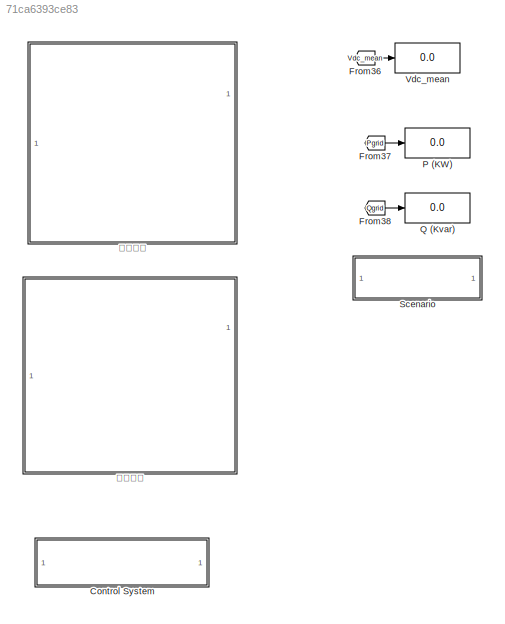
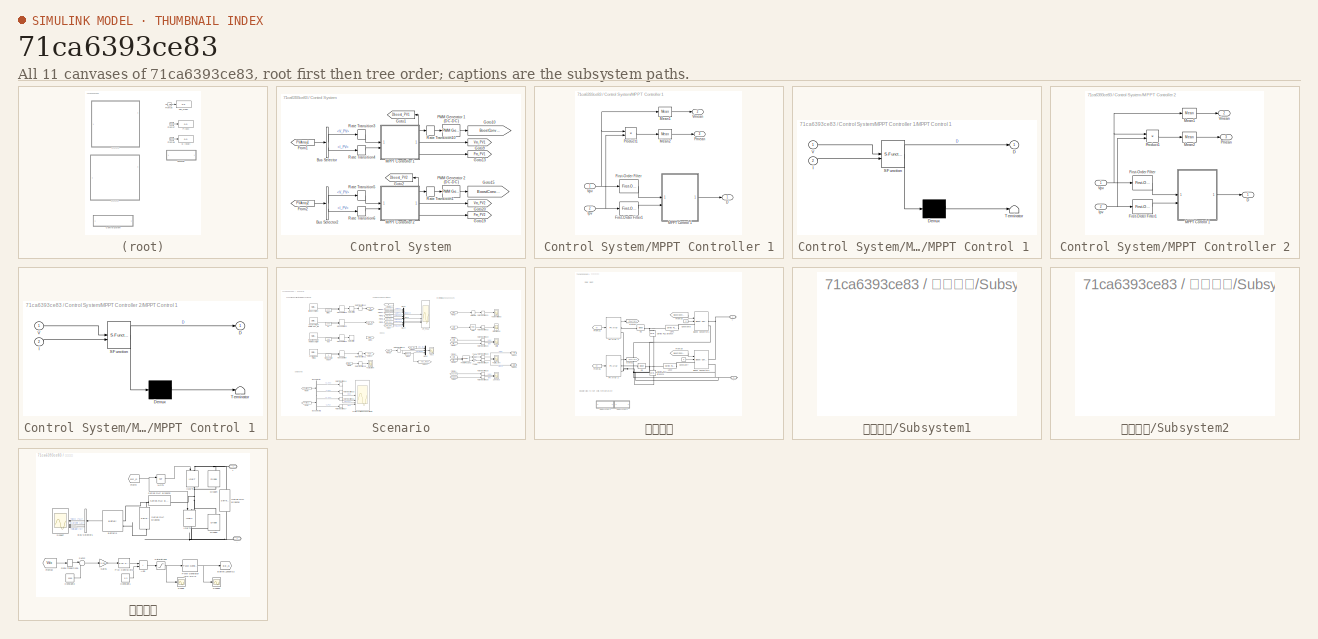
[diagram: thumbnail index - all 11 canvases of the model, root first then tree order]
MODEL slx_71ca6393ce83
KIND model
CONFIG AbsTol = auto
CONFIG EnableMultiTasking = off
CONFIG FixedStep = auto
CONFIG MaxStep = auto
CONFIG MinStep = auto
CONFIG RelTol = 1e-3
CONFIG SampleTimeConstraint = Unconstrained
CONFIG SolverName = VariableStepAuto
CONFIG StartTime = 0.0
CONFIG StopTime = 10.0
BLOCK [SubSystem] Control System
BLOCK [BusSelector] Control System/Bus Selector
  OutputSignals = V_PV,I_PV
BLOCK [BusSelector] Control System/Bus Selector2
  OutputSignals = V_PV,I_PV
BLOCK [From] Control System/From1
  GotoTag = PVArray1
  TagVisibility = global
BLOCK [From] Control System/From2
  GotoTag = PVArray2
  TagVisibility = global
BLOCK [Goto] Control System/Goto1
  GotoTag = Dboost_PV1
  TagVisibility = global
BLOCK [Goto] Control System/Goto10
  GotoTag = BoostConverter1
  TagVisibility = global
BLOCK [Goto] Control System/Goto13
  GotoTag = Pm_PV1
  TagVisibility = global
BLOCK [Goto] Control System/Goto15
  GotoTag = BoostConverter2
  TagVisibility = global
BLOCK [Goto] Control System/Goto19
  GotoTag = Pm_PV2
  TagVisibility = global
BLOCK [Goto] Control System/Goto2
  GotoTag = Dboost_PV2
  TagVisibility = global
BLOCK [Goto] Control System/Goto20
  GotoTag = Vm_PV2
  TagVisibility = global
BLOCK [Goto] Control System/Goto9
  GotoTag = Vm_PV1
  TagVisibility = global
BLOCK [SubSystem] Control System/MPPT Controller 1
BLOCK [Outport] Control System/MPPT Controller 1/D
  VectorParamsAs1DForOutWhenUnconnected = off
BLOCK [Reference] Control System/MPPT Controller 1/First-Order Filter  REF=spsFirstOrderFilterLib/First-Order
Filter
  LibrarySourceBlock = sps_lib/Control/Filters/First-Order\nFilter
  SourceBlock = spsFirstOrderFilterLib/First-Order\nFilter
  SourceType = First-Order Filter
BLOCK [Reference] Control System/MPPT Controller 1/First-Order Filter1  REF=spsFirstOrderFilterLib/First-Order
Filter
  LibrarySourceBlock = sps_lib/Control/Filters/First-Order\nFilter
  SourceBlock = spsFirstOrderFilterLib/First-Order\nFilter
  SourceType = First-Order Filter
BLOCK [Inport] Control System/MPPT Controller 1/Ipv
  Port = 2
BLOCK [SubSystem] Control System/MPPT Controller 1/MPPT Control 1 
  ErrorFcn = Stateflow.Translate.translate
  NameLocation = top
  PermitHierarchicalResolution = ExplicitOnly
  SFBlockType = MATLAB Function
  TreatAsAtomicUnit = on
BLOCK [Demux] Control System/MPPT Controller 1/MPPT Control 1 / Demux 
  Outputs = 1
BLOCK [S-Function] Control System/MPPT Controller 1/MPPT Control 1 / SFunction 
  EnableBusSupport = on
  FunctionName = sf_sfun
  Parameters = Dinit,Dmax,Dmin,deltaD
  PortCounts = [2 2]
  SFcnIsStateOwnerBlock = off
  SFunctionDeploymentMode = off
  Tag = Stateflow S-Function 1
BLOCK [Terminator] Control System/MPPT Controller 1/MPPT Control 1 / Terminator 
BLOCK [Outport] Control System/MPPT Controller 1/MPPT Control 1 /D
  VectorParamsAs1DForOutWhenUnconnected = off
BLOCK [Inport] Control System/MPPT Controller 1/MPPT Control 1 /I
  Port = 2
BLOCK [Inport] Control System/MPPT Controller 1/MPPT Control 1 /V
BLOCK [Reference] Control System/MPPT Controller 1/Mean1  REF=spsMeanLib/Mean
  LibrarySourceBlock = sps_lib/Sensors and Measurements/Mean
  SourceBlock = spsMeanLib/Mean
  SourceType = Mean
BLOCK [Reference] Control System/MPPT Controller 1/Mean2  REF=spsMeanLib/Mean
  LibrarySourceBlock = sps_lib/Sensors and Measurements/Mean
  SourceBlock = spsMeanLib/Mean
  SourceType = Mean
BLOCK [Outport] Control System/MPPT Controller 1/Pmean
  Port = 3
  VectorParamsAs1DForOutWhenUnconnected = off
BLOCK [Product] Control System/MPPT Controller 1/Product1
BLOCK [Outport] Control System/MPPT Controller 1/Vmean
  Port = 2
  VectorParamsAs1DForOutWhenUnconnected = off
BLOCK [Inport] Control System/MPPT Controller 1/Vpv
BLOCK [SubSystem] Control System/MPPT Controller 2
BLOCK [Outport] Control System/MPPT Controller 2/D
  VectorParamsAs1DForOutWhenUnconnected = off
BLOCK [Reference] Control System/MPPT Controller 2/First-Order Filter  REF=spsFirstOrderFilterLib/First-Order
Filter
  LibrarySourceBlock = sps_lib/Control/Filters/First-Order\nFilter
  SourceBlock = spsFirstOrderFilterLib/First-Order\nFilter
  SourceType = First-Order Filter
BLOCK [Reference] Control System/MPPT Controller 2/First-Order Filter1  REF=spsFirstOrderFilterLib/First-Order
Filter
  LibrarySourceBlock = sps_lib/Control/Filters/First-Order\nFilter
  SourceBlock = spsFirstOrderFilterLib/First-Order\nFilter
  SourceType = First-Order Filter
BLOCK [Inport] Control System/MPPT Controller 2/Ipv
  Port = 2
BLOCK [SubSystem] Control System/MPPT Controller 2/MPPT Control 1 
  ErrorFcn = Stateflow.Translate.translate
  NameLocation = top
  PermitHierarchicalResolution = ExplicitOnly
  SFBlockType = MATLAB Function
  TreatAsAtomicUnit = on
BLOCK [Demux] Control System/MPPT Controller 2/MPPT Control 1 / Demux 
  Outputs = 1
BLOCK [S-Function] Control System/MPPT Controller 2/MPPT Control 1 / SFunction 
  EnableBusSupport = on
  FunctionName = sf_sfun
  Parameters = Dinit,Dmax,Dmin,deltaD
  PortCounts = [2 2]
  SFcnIsStateOwnerBlock = off
  SFunctionDeploymentMode = off
  Tag = Stateflow S-Function 4
BLOCK [Terminator] Control System/MPPT Controller 2/MPPT Control 1 / Terminator 
BLOCK [Outport] Control System/MPPT Controller 2/MPPT Control 1 /D
  VectorParamsAs1DForOutWhenUnconnected = off
BLOCK [Inport] Control System/MPPT Controller 2/MPPT Control 1 /I
  Port = 2
BLOCK [Inport] Control System/MPPT Controller 2/MPPT Control 1 /V
BLOCK [Reference] Control System/MPPT Controller 2/Mean1  REF=spsMeanLib/Mean
  LibrarySourceBlock = sps_lib/Sensors and Measurements/Mean
  SourceBlock = spsMeanLib/Mean
  SourceType = Mean
BLOCK [Reference] Control System/MPPT Controller 2/Mean2  REF=spsMeanLib/Mean
  LibrarySourceBlock = sps_lib/Sensors and Measurements/Mean
  SourceBlock = spsMeanLib/Mean
  SourceType = Mean
BLOCK [Outport] Control System/MPPT Controller 2/Pmean
  Port = 3
  VectorParamsAs1DForOutWhenUnconnected = off
BLOCK [Product] Control System/MPPT Controller 2/Product1
BLOCK [Outport] Control System/MPPT Controller 2/Vmean
  Port = 2
  VectorParamsAs1DForOutWhenUnconnected = off
BLOCK [Inport] Control System/MPPT Controller 2/Vpv
BLOCK [Reference] Control System/PWM Generator 1 (DC-DC)  REF=spsPWMGeneratorDCDCLib/PWM Generator
(DC-DC)
  LibrarySourceBlock = sps_lib/Power Electronics/Power Electronics Control/PWM Generator\n(DC-DC)
  NameLocation = top
  SourceBlock = spsPWMGeneratorDCDCLib/PWM Generator\n(DC-DC)
  SourceType = PWM Generator (DC-DC)
BLOCK [Reference] Control System/PWM Generator 2 (DC-DC)  REF=spsPWMGeneratorDCDCLib/PWM Generator
(DC-DC)
  LibrarySourceBlock = sps_lib/Power Electronics/Power Electronics Control/PWM Generator\n(DC-DC)
  NameLocation = top
  SourceBlock = spsPWMGeneratorDCDCLib/PWM Generator\n(DC-DC)
  SourceType = PWM Generator (DC-DC)
BLOCK [RateTransition] Control System/Rate Transition1
  OutPortSampleTime = Ts_Power
BLOCK [RateTransition] Control System/Rate Transition10
  OutPortSampleTime = Ts_Power
BLOCK [RateTransition] Control System/Rate Transition3
  OutPortSampleTime = Ts
BLOCK [RateTransition] Control System/Rate Transition4
  OutPortSampleTime = Ts
BLOCK [RateTransition] Control System/Rate Transition5
  OutPortSampleTime = Ts
BLOCK [RateTransition] Control System/Rate Transition6
  OutPortSampleTime = Ts
BLOCK [From] From36
  GotoTag = Vdc_mean
  TagVisibility = global
BLOCK [From] From37
  GotoTag = Pgrid
  TagVisibility = global
BLOCK [From] From38
  GotoTag = Qgrid
  TagVisibility = global
BLOCK [Display] P (KW)
  Decimation = 200
  Format = bank
BLOCK [Display] Q (Kvar)
  Decimation = 200
  Format = bank
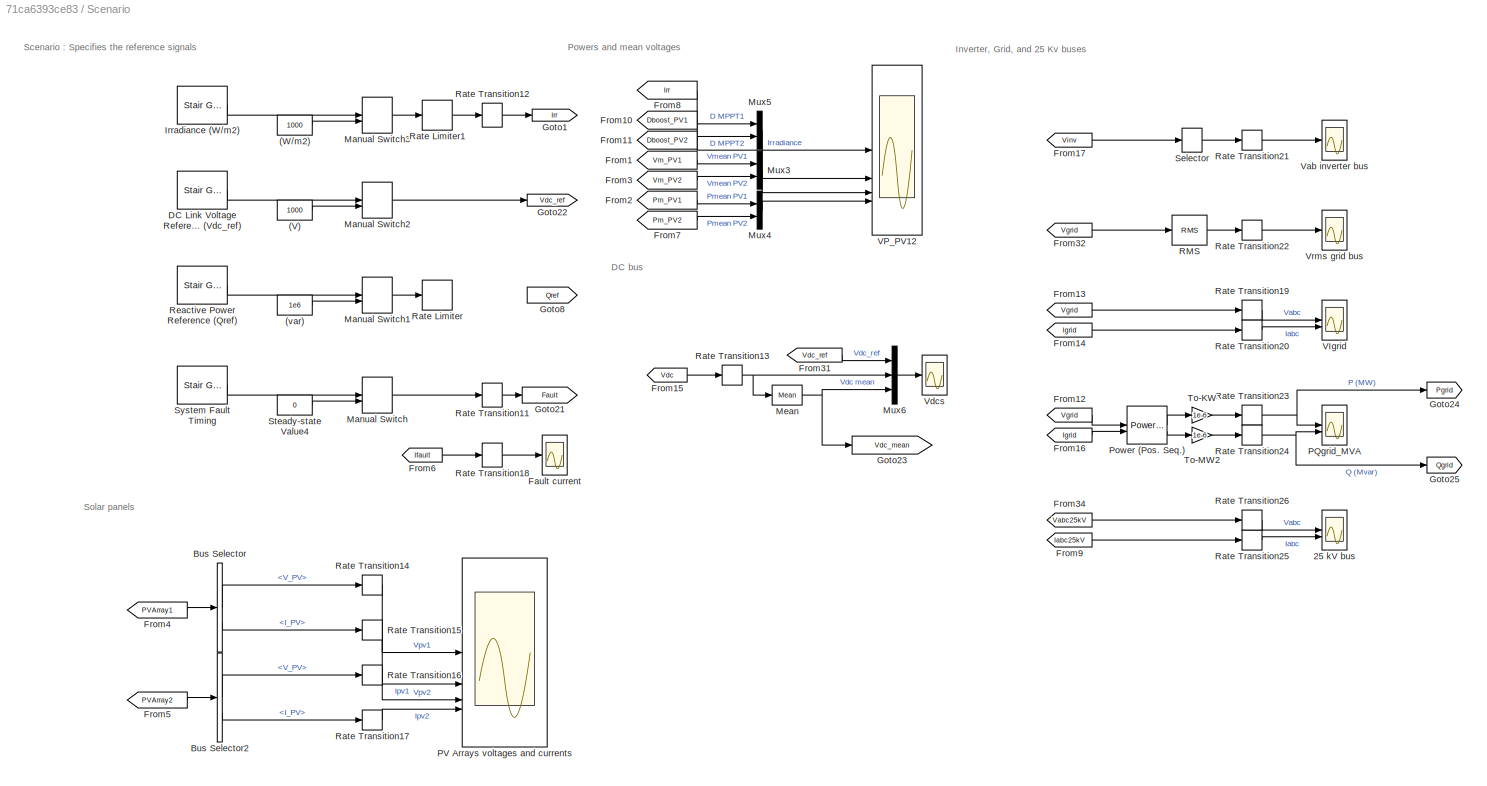
BLOCK [SubSystem] Scenario
BLOCK [Constant] Scenario/(V)
  Value = 1000
BLOCK [Constant] Scenario/(W//m2)
  Value = 1000
BLOCK [Constant] Scenario/(var)
  Value = 1e6
BLOCK [Scope] Scenario/25 kV bus
  Floating = off
  NumInputPorts = 2
  ScopeSpecificationString = Simulink.scopes.TimeScopeBlockCfg('CurrentConfiguration', extmgr.ConfigurationSet(extmgr.Configuration('Core','General UI',true),extmgr.Configuration('Core','Source UI',true),extmgr.Configuration('Sources','WiredSimulink',true,'DataLoggingVariableName','ScopeData7','DataLoggingSaveFormat','StructureWithTime','DataLoggingDecimation','100'),extmgr.Configuration('Visuals','Time Domain',true,'Serializ...<+2198ch>
BLOCK [BusSelector] Scenario/Bus Selector
  OutputSignals = V_PV,I_PV
BLOCK [BusSelector] Scenario/Bus Selector2
  OutputSignals = V_PV,I_PV
BLOCK [Reference] Scenario/DC Link Voltage Reference (Vdc_ref)  REF=spsStairGeneratorLib/Stair
Generator
  LibrarySourceBlock = sps_lib/Sources/Signal Generator Sources/Stair\nGenerator
  SourceBlock = spsStairGeneratorLib/Stair\nGenerator
  SourceType = Stair Generator
BLOCK [Scope] Scenario/Fault current
  Floating = off
  NumInputPorts = 1
  ScopeSpecificationString = Simulink.scopes.TimeScopeBlockCfg('CurrentConfiguration', extmgr.ConfigurationSet(extmgr.Configuration('Core','General UI',true),extmgr.Configuration('Core','Source UI',true),extmgr.Configuration('Sources','WiredSimulink',true,'DataLoggingVariableName','ScopeData2','DataLoggingSaveFormat','StructureWithTime','DataLoggingDecimation','100','DataLogging',true),extmgr.Configuration('Visuals','Time Dom...<+1617ch>
BLOCK [From] Scenario/From1
  GotoTag = Vm_PV1
  TagVisibility = global
BLOCK [From] Scenario/From10
  GotoTag = Dboost_PV1
  TagVisibility = global
BLOCK [From] Scenario/From11
  GotoTag = Dboost_PV2
  TagVisibility = global
BLOCK [From] Scenario/From12
  GotoTag = Vgrid
  TagVisibility = global
BLOCK [From] Scenario/From13
  GotoTag = Vgrid
  TagVisibility = global
BLOCK [From] Scenario/From14
  GotoTag = Igrid
  TagVisibility = global
BLOCK [From] Scenario/From15
  GotoTag = Vdc
  TagVisibility = global
BLOCK [From] Scenario/From16
  GotoTag = Igrid
  TagVisibility = global
BLOCK [From] Scenario/From17
  GotoTag = Vinv
  TagVisibility = global
BLOCK [From] Scenario/From2
  GotoTag = Pm_PV1
  TagVisibility = global
BLOCK [From] Scenario/From3
  GotoTag = Vm_PV2
  TagVisibility = global
BLOCK [From] Scenario/From31
  GotoTag = Vdc_ref
  TagVisibility = global
BLOCK [From] Scenario/From32
  GotoTag = Vgrid
  TagVisibility = global
BLOCK [From] Scenario/From34
  GotoTag = Vabc25kV
  TagVisibility = global
BLOCK [From] Scenario/From4
  GotoTag = PVArray1
  TagVisibility = global
BLOCK [From] Scenario/From5
  GotoTag = PVArray2
  TagVisibility = global
BLOCK [From] Scenario/From6
  GotoTag = Ifault
  TagVisibility = global
BLOCK [From] Scenario/From7
  GotoTag = Pm_PV2
  TagVisibility = global
BLOCK [From] Scenario/From8
  GotoTag = Irr
  TagVisibility = global
BLOCK [From] Scenario/From9
  GotoTag = Iabc25kV
  TagVisibility = global
BLOCK [Goto] Scenario/Goto1
  GotoTag = Irr
  TagVisibility = global
BLOCK [Goto] Scenario/Goto21
  GotoTag = Fault
  TagVisibility = global
BLOCK [Goto] Scenario/Goto22
  GotoTag = Vdc_ref
  TagVisibility = global
BLOCK [Goto] Scenario/Goto23
  GotoTag = Vdc_mean
  TagVisibility = global
BLOCK [Goto] Scenario/Goto24
  GotoTag = Pgrid
  TagVisibility = global
BLOCK [Goto] Scenario/Goto25
  GotoTag = Qgrid
  TagVisibility = global
BLOCK [Goto] Scenario/Goto8
  GotoTag = Qref
  TagVisibility = global
BLOCK [Reference] Scenario/Irradiance (W//m2)  REF=spsStairGeneratorLib/Stair
Generator
  LibrarySourceBlock = sps_lib/Sources/Signal Generator Sources/Stair\nGenerator
  SourceBlock = spsStairGeneratorLib/Stair\nGenerator
  SourceType = Stair Generator
BLOCK [ManualSwitch] Scenario/Manual Switch
BLOCK [ManualSwitch] Scenario/Manual Switch1
  CurrentSetting = 0
BLOCK [ManualSwitch] Scenario/Manual Switch2
  CurrentSetting = 0
BLOCK [ManualSwitch] Scenario/Manual Switch3
  CurrentSetting = 0
BLOCK [Reference] Scenario/Mean  REF=spsMeanLib/Mean
  LibrarySourceBlock = sps_lib/Sensors and Measurements/Mean
  SourceBlock = spsMeanLib/Mean
  SourceType = Mean
BLOCK [Mux] Scenario/Mux3
  DisplayOption = bar
  Inputs = 2
BLOCK [Mux] Scenario/Mux4
  DisplayOption = bar
  Inputs = 2
BLOCK [Mux] Scenario/Mux5
  DisplayOption = bar
  Inputs = 2
BLOCK [Mux] Scenario/Mux6
  DisplayOption = bar
  Inputs = 3
BLOCK [Scope] Scenario/PQgrid_MVA
  Floating = off
  NumInputPorts = 2
  ScopeSpecificationString = Simulink.scopes.TimeScopeBlockCfg('CurrentConfiguration', extmgr.ConfigurationSet(extmgr.Configuration('Core','General UI',true),extmgr.Configuration('Core','Source UI',true),extmgr.Configuration('Sources','WiredSimulink',true,'DataLoggingVariableName','ScopeData4','DataLogging',true,'DataLoggingSaveFormat','StructureWithTime'),extmgr.Configuration('Visuals','Time Domain',true,'SerializedDisplays'...<+2180ch>
BLOCK [Scope] Scenario/PV Arrays voltages and currents
  Floating = off
  NumInputPorts = 4
  ScopeSpecificationString = Simulink.scopes.TimeScopeBlockCfg('CurrentConfiguration', extmgr.ConfigurationSet(extmgr.Configuration('Core','General UI',true),extmgr.Configuration('Core','Source UI',true),extmgr.Configuration('Sources','WiredSimulink',true,'DataLoggingVariableName','ScopeData6','DataLogging',true,'DataLoggingSaveFormat','StructureWithTime'),extmgr.Configuration('Visuals','Time Domain',true,'SerializedDisplays'...<+3542ch>
BLOCK [Reference] Scenario/Power (Pos. Seq.)  REF=spsPowerPositiveSequenceLib/Power
(Positive-Sequence)
  LibrarySourceBlock = sps_lib/Sensors and Measurements/Power\n(Positive-Sequence)
  SourceBlock = spsPowerPositiveSequenceLib/Power\n(Positive-Sequence)
  SourceType = Power (Positive-Sequence)
BLOCK [Reference] Scenario/RMS  REF=spsRMSLib/RMS
  LibrarySourceBlock = sps_lib/Sensors and Measurements/RMS
  SourceBlock = spsRMSLib/RMS
  SourceType = RMS
BLOCK [RateLimiter] Scenario/Rate Limiter
  FallingSlewLimit = -1e6/(1/60)
  InitialCondition = 1e6
  RisingSlewLimit = 1e6/(1/60)
  SampleTimeMode = inherited
BLOCK [RateLimiter] Scenario/Rate Limiter1
  FallingSlewLimit = -1000/(1/60)
  InitialCondition = 1000
  RisingSlewLimit = 1000/(1/60)
  SampleTimeMode = inherited
BLOCK [RateTransition] Scenario/Rate Transition11
  OutPortSampleTime = Ts_Power
BLOCK [RateTransition] Scenario/Rate Transition12
  OutPortSampleTime = Ts_Power
BLOCK [RateTransition] Scenario/Rate Transition13
  OutPortSampleTime = Ts
BLOCK [RateTransition] Scenario/Rate Transition14
  OutPortSampleTime = Ts
BLOCK [RateTransition] Scenario/Rate Transition15
  OutPortSampleTime = Ts
BLOCK [RateTransition] Scenario/Rate Transition16
  OutPortSampleTime = Ts
BLOCK [RateTransition] Scenario/Rate Transition17
  OutPortSampleTime = Ts
BLOCK [RateTransition] Scenario/Rate Transition18
  OutPortSampleTime = Ts
BLOCK [RateTransition] Scenario/Rate Transition19
  OutPortSampleTime = Ts
BLOCK [RateTransition] Scenario/Rate Transition20
  OutPortSampleTime = Ts
BLOCK [RateTransition] Scenario/Rate Transition21
  OutPortSampleTime = Ts
BLOCK [RateTransition] Scenario/Rate Transition22
  OutPortSampleTime = Ts
BLOCK [RateTransition] Scenario/Rate Transition23
  OutPortSampleTime = Ts
BLOCK [RateTransition] Scenario/Rate Transition24
  OutPortSampleTime = Ts
BLOCK [RateTransition] Scenario/Rate Transition25
  OutPortSampleTime = Ts
BLOCK [RateTransition] Scenario/Rate Transition26
  OutPortSampleTime = Ts
BLOCK [Reference] Scenario/Reactive Power Reference (Qref)   REF=spsStairGeneratorLib/Stair
Generator
  LibrarySourceBlock = sps_lib/Sources/Signal Generator Sources/Stair\nGenerator
  SourceBlock = spsStairGeneratorLib/Stair\nGenerator
  SourceType = Stair Generator
BLOCK [Selector] Scenario/Selector
  IndexOptions = Index vector (dialog)
  Indices = 1
  InputPortWidth = 3
  OutputSizes = 1
BLOCK [Constant] Scenario/Steady-state Value4
  Value = 0
BLOCK [Reference] Scenario/System Fault Timing  REF=spsStairGeneratorLib/Stair
Generator
  LibrarySourceBlock = sps_lib/Sources/Signal Generator Sources/Stair\nGenerator
  SourceBlock = spsStairGeneratorLib/Stair\nGenerator
  SourceType = Stair Generator
BLOCK [Gain] Scenario/To-KW
  Gain = 1e-6
  NameLocation = top
BLOCK [Gain] Scenario/To-MW2
  Gain = 1e-6
  NameLocation = top
BLOCK [Scope] Scenario/VIgrid
  Floating = off
  NumInputPorts = 2
  ScopeSpecificationString = Simulink.scopes.TimeScopeBlockCfg('CurrentConfiguration', extmgr.ConfigurationSet(extmgr.Configuration('Core','General UI',true),extmgr.Configuration('Core','Source UI',true),extmgr.Configuration('Sources','WiredSimulink',true,'DataLoggingVariableName','ScopeData8','DataLoggingSaveFormat','StructureWithTime','DataLoggingDecimation','100','DataLogging',true),extmgr.Configuration('Visuals','Time Dom...<+2216ch>
BLOCK [Scope] Scenario/VP_PV12
  Floating = off
  NumInputPorts = 4
  ScopeSpecificationString = Simulink.scopes.TimeScopeBlockCfg('CurrentConfiguration', extmgr.ConfigurationSet(extmgr.Configuration('Core','General UI',true),extmgr.Configuration('Core','Source UI',true),extmgr.Configuration('Sources','WiredSimulink',true,'DataLoggingVariableName','ScopeData9','DataLogging',true,'DataLoggingSaveFormat','StructureWithTime'),extmgr.Configuration('Visuals','Time Domain',true,'SerializedDisplays'...<+3665ch>
BLOCK [Scope] Scenario/Vab inverter bus
  Floating = off
  NumInputPorts = 1
  ScopeSpecificationString = Simulink.scopes.TimeScopeBlockCfg('CurrentConfiguration', extmgr.ConfigurationSet(extmgr.Configuration('Core','General UI',true),extmgr.Configuration('Core','Source UI',true),extmgr.Configuration('Sources','WiredSimulink',true,'DataLoggingVariableName','ScopeData10','DataLogging',true,'DataLoggingSaveFormat','StructureWithTime'),extmgr.Configuration('Visuals','Time Domain',true,'SerializedDisplays...<+1588ch>
BLOCK [Scope] Scenario/Vdcs
  Floating = off
  NumInputPorts = 1
  ScopeSpecificationString = Simulink.scopes.TimeScopeBlockCfg('CurrentConfiguration', extmgr.ConfigurationSet(extmgr.Configuration('Core','General UI',true),extmgr.Configuration('Core','Source UI',true),extmgr.Configuration('Sources','WiredSimulink',true,'DataLoggingVariableName','ScopeData11','DataLogging',true,'DataLoggingSaveFormat','StructureWithTime'),extmgr.Configuration('Visuals','Time Domain',true,'SerializedDisplays...<+1624ch>
BLOCK [Scope] Scenario/Vrms grid bus
  Floating = off
  NumInputPorts = 1
  ScopeSpecificationString = Simulink.scopes.TimeScopeBlockCfg('CurrentConfiguration', extmgr.ConfigurationSet(extmgr.Configuration('Core','General UI',true),extmgr.Configuration('Core','Source UI',true),extmgr.Configuration('Sources','WiredSimulink',true,'DataLogging',true,'DataLoggingSaveFormat','StructureWithTime'),extmgr.Configuration('Visuals','Time Domain',true,'SerializedDisplays',{struct('MinYLimReal','12016.34853','M...<+1553ch>
BLOCK [Display] Vdc_mean
  Decimation = 200
BLOCK [SubSystem] 光伏阵列
BLOCK [PMIOPort] 光伏阵列/+
  Side = Right
BLOCK [PMIOPort] 光伏阵列/-
  Port = 2
  Side = Right
BLOCK [Reference] 光伏阵列/Boost Converter1  REF=spsBoostConverterLib/Boost Converter
  LibrarySourceBlock = sps_lib/Power Electronics/Boost Converter
  SourceBlock = spsBoostConverterLib/Boost Converter
  SourceType = Boost Converter
BLOCK [Reference] 光伏阵列/Boost Converter2  REF=spsBoostConverterLib/Boost Converter
  LibrarySourceBlock = sps_lib/Power Electronics/Boost Converter
  SourceBlock = spsBoostConverterLib/Boost Converter
  SourceType = Boost Converter
BLOCK [Constant] 光伏阵列/Constant7
  SampleTime = Ts
  Value = 0
BLOCK [Constant] 光伏阵列/Constant8
  SampleTime = Ts
  Value = 0
BLOCK [Reference] 光伏阵列/D1  REF=spsDiodeLib/Diode
  LibrarySourceBlock = sps_lib/Power Electronics/Diode
  SourceBlock = spsDiodeLib/Diode
  SourceType = Diode
BLOCK [Reference] 光伏阵列/D2  REF=spsDiodeLib/Diode
  LibrarySourceBlock = sps_lib/Power Electronics/Diode
  SourceBlock = spsDiodeLib/Diode
  SourceType = Diode
BLOCK [From] 光伏阵列/From21
  GotoTag = Irr
  TagVisibility = global
BLOCK [From] 光伏阵列/From33
  GotoTag = BoostConverter1
  TagVisibility = global
BLOCK [From] 光伏阵列/From35
  GotoTag = Irr
  TagVisibility = global
BLOCK [From] 光伏阵列/From39
  GotoTag = BoostConverter2
  TagVisibility = global
BLOCK [Goto] 光伏阵列/Goto13
  GotoTag = PVArray2
  TagVisibility = global
BLOCK [Goto] 光伏阵列/Goto17
  GotoTag = PVArray1
  TagVisibility = global
BLOCK [Reference] 光伏阵列/Lpv1  REF=spsSeriesRLCBranchLib/Series RLC Branch
  LibrarySourceBlock = sps_lib/Passives/Series RLC Branch
  NameLocation = top
  SourceBlock = spsSeriesRLCBranchLib/Series RLC Branch
  SourceType = Series RLC Branch
BLOCK [Reference] 光伏阵列/Lpv2  REF=spsSeriesRLCBranchLib/Series RLC Branch
  LibrarySourceBlock = sps_lib/Passives/Series RLC Branch
  NameLocation = top
  SourceBlock = spsSeriesRLCBranchLib/Series RLC Branch
  SourceType = Series RLC Branch
BLOCK [Reference] 光伏阵列/PV Array 1  REF=spsPVArrayLib/PV Array
  AttributesFormatString = (%<RobustCellTemperature> deg. C)
  LibrarySourceBlock = sps_lib/Sources/PV Array
  SourceBlock = spsPVArrayLib/PV Array
  SourceType = PV array
BLOCK [Reference] 光伏阵列/PV Array 2  REF=spsPVArrayLib/PV Array
  AttributesFormatString = (%<RobustCellTemperature> deg. C)
  LibrarySourceBlock = sps_lib/Sources/PV Array
  SourceBlock = spsPVArrayLib/PV Array
  SourceType = PV array
BLOCK [Reference] 光伏阵列/Series RLC Branch  REF=spsSeriesRLCBranchLib/Series RLC Branch
  LibrarySourceBlock = sps_lib/Passives/Series RLC Branch
  SourceBlock = spsSeriesRLCBranchLib/Series RLC Branch
  SourceType = Series RLC Branch
BLOCK [Reference] 光伏阵列/Series RLC Branch1  REF=spsSeriesRLCBranchLib/Series RLC Branch
  LibrarySourceBlock = sps_lib/Passives/Series RLC Branch
  SourceBlock = spsSeriesRLCBranchLib/Series RLC Branch
  SourceType = Series RLC Branch
BLOCK [SubSystem] 光伏阵列/Subsystem1
  OpenFcn = SystemName1=gcs;\nBlockName1=[SystemName1, '/', 'PV Array 1'];\nset_param(BlockName1,'RobustCellTemperature','25');\nset_param(BlockName1,'ForegroundColor','black');\nBlockName2=[SystemName1, '/', 'PV Array 2'];\nset_param(BlockName2,'RobustCellTemperature','25');\nset_param(BlockName2,'ForegroundColor','black');
BLOCK [SubSystem] 光伏阵列/Subsystem2
  OpenFcn = SystemName1=gcs;\nBlockName1=[SystemName1, '/', 'PV Array 1'];\nset_param(BlockName1,'RobustCellTemperature','45');\nset_param(BlockName1,'ForegroundColor','red');\nBlockName2=[SystemName1, '/', 'PV Array 2'];\nset_param(BlockName2,'RobustCellTemperature','45');\nset_param(BlockName2,'ForegroundColor','red');
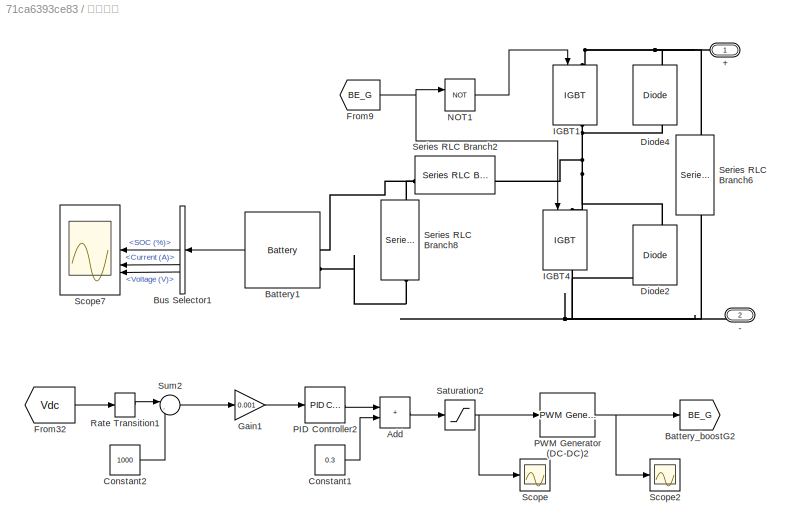
BLOCK [SubSystem] 蓄电池组
BLOCK [PMIOPort] 蓄电池组/+
  NameLocation = top
  Side = Right
BLOCK [PMIOPort] 蓄电池组/-
  NameLocation = top
  Port = 2
  Side = Right
BLOCK [Sum] 蓄电池组/Add
  IconShape = rectangular
BLOCK [Reference] 蓄电池组/Battery1  REF=spsBatteryLib/Battery
  LibrarySourceBlock = sps_lib/Sources/Battery
  SourceBlock = spsBatteryLib/Battery
  SourceType = Battery
BLOCK [Goto] 蓄电池组/Battery_boostG2
  GotoTag = BE_G
BLOCK [BusSelector] 蓄电池组/Bus Selector1
  NameLocation = top
  OutputSignals = SOC (%),Current (A),Voltage (V)
BLOCK [Constant] 蓄电池组/Constant1
  Value = 0.3
BLOCK [Constant] 蓄电池组/Constant2
  Value = 1000
BLOCK [Reference] 蓄电池组/Diode2  REF=spsDiodeLib/Diode
  LibrarySourceBlock = sps_lib/Power Electronics/Diode
  NameLocation = left
  SourceBlock = spsDiodeLib/Diode
  SourceType = Diode
BLOCK [Reference] 蓄电池组/Diode4  REF=spsDiodeLib/Diode
  LibrarySourceBlock = sps_lib/Power Electronics/Diode
  NameLocation = left
  SourceBlock = spsDiodeLib/Diode
  SourceType = Diode
BLOCK [From] 蓄电池组/From32
  GotoTag = Vdc
  NameLocation = left
  TagVisibility = global
BLOCK [From] 蓄电池组/From9
  GotoTag = BE_G
BLOCK [Gain] 蓄电池组/Gain1
  Gain = 0.001
BLOCK [Reference] 蓄电池组/IGBT1  REF=spsIGBTLib/IGBT
  LibrarySourceBlock = sps_lib/Power Electronics/IGBT
  NameLocation = left
  SourceBlock = spsIGBTLib/IGBT
  SourceType = IGBT
BLOCK [Reference] 蓄电池组/IGBT4  REF=spsIGBTLib/IGBT
  LibrarySourceBlock = sps_lib/Power Electronics/IGBT
  NameLocation = left
  SourceBlock = spsIGBTLib/IGBT
  SourceType = IGBT
BLOCK [Logic] 蓄电池组/NOT1
  AllPortsSameDT = off
  IconShape = distinctive
  Operator = NOT
  OutDataTypeStr = boolean
BLOCK [Reference] 蓄电池组/PID Controller2  REF=slpidlib/PID Controller
  LibrarySourceBlock = simulink/Continuous/PID Controller
  SourceBlock = slpidlib/PID Controller
  SourceType = PID 1dof
BLOCK [Reference] 蓄电池组/PWM Generator (DC-DC)2  REF=spsPWMGeneratorDCDCLib/PWM Generator
(DC-DC)
  LibrarySourceBlock = sps_lib/Power Electronics/Power Electronics Control/PWM Generator\n(DC-DC)
  SourceBlock = spsPWMGeneratorDCDCLib/PWM Generator\n(DC-DC)
  SourceType = PWM Generator (DC-DC)
BLOCK [RateTransition] 蓄电池组/Rate Transition1
  OutPortSampleTime = 50e-6
BLOCK [Saturate] 蓄电池组/Saturation2
  LowerLimit = 0.01
  UpperLimit = 0.9
BLOCK [Scope] 蓄电池组/Scope
  Floating = off
  NumInputPorts = 1
  ScopeSpecificationString = Simulink.scopes.TimeScopeBlockCfg('CurrentConfiguration', extmgr.ConfigurationSet(extmgr.Configuration('Core','General UI',true),extmgr.Configuration('Core','Source UI',true),extmgr.Configuration('Sources','WiredSimulink',true,'DataLoggingVariableName','ScopeData3'),extmgr.Configuration('Visuals','Time Domain',true,'SerializedDisplays',{struct('MinYLimReal','-0.02625','MaxYLimReal','0.33625','YLab...<+1396ch>
BLOCK [Scope] 蓄电池组/Scope2
  Floating = off
  NumInputPorts = 1
  ScopeSpecificationString = Simulink.scopes.TimeScopeBlockCfg('CurrentConfiguration', extmgr.ConfigurationSet(extmgr.Configuration('Core','General UI',true),extmgr.Configuration('Core','Source UI',true),extmgr.Configuration('Sources','WiredSimulink',true,'DataLoggingVariableName','ScopeData1'),extmgr.Configuration('Visuals','Time Domain',true,'SerializedDisplays',{struct('MinYLimReal','-0.11416','MaxYLimReal','1.125','YLabel...<+1444ch>
BLOCK [Scope] 蓄电池组/Scope7
  Floating = off
  NumInputPorts = 3
  ScopeSpecificationString = Simulink.scopes.TimeScopeBlockCfg('CurrentConfiguration', extmgr.ConfigurationSet(extmgr.Configuration('Core','General UI',true),extmgr.Configuration('Core','Source UI',true),extmgr.Configuration('Sources','WiredSimulink',true,'DataLoggingVariableName','ScopeData2'),extmgr.Configuration('Visuals','Time Domain',true,'SerializedDisplays',{struct('MinYLimReal','69.98612','MaxYLimReal','70.1246','YLab...<+2752ch>
BLOCK [Reference] 蓄电池组/Series RLC Branch2  REF=spsSeriesRLCBranchLib/Series RLC Branch
  LibrarySourceBlock = sps_lib/Passives/Series RLC Branch
  SourceBlock = spsSeriesRLCBranchLib/Series RLC Branch
  SourceType = Series RLC Branch
BLOCK [Reference] 蓄电池组/Series RLC Branch6  REF=spsSeriesRLCBranchLib/Series RLC Branch
  LibrarySourceBlock = sps_lib/Passives/Series RLC Branch
  NameLocation = left
  SourceBlock = spsSeriesRLCBranchLib/Series RLC Branch
  SourceType = Series RLC Branch
BLOCK [Reference] 蓄电池组/Series RLC Branch8  REF=spsSeriesRLCBranchLib/Series RLC Branch
  LibrarySourceBlock = sps_lib/Passives/Series RLC Branch
  NameLocation = left
  SourceBlock = spsSeriesRLCBranchLib/Series RLC Branch
  SourceType = Series RLC Branch
BLOCK [Sum] 蓄电池组/Sum2
  Inputs = |-+
ANNOTATION Scenario: DC bus
ANNOTATION Scenario: Inverter, Grid, and 25 Kv buses
ANNOTATION Scenario: Powers and mean voltages
ANNOTATION Scenario: Scenario : Specifies the reference signals
ANNOTATION Scenario: Solar panels
ANNOTATION 光伏阵列: Double-click to set cells temperature
ANNOTATION 光伏阵列: Solar plant
LINE Control System/Bus Selector2:1 -> Control System/Rate Transition5:1
LINE Control System/Bus Selector2:2 -> Control System/Rate Transition6:1
LINE Control System/Bus Selector:1 -> Control System/Rate Transition3:1
LINE Control System/Bus Selector:2 -> Control System/Rate Transition4:1
LINE Control System/From1:1 -> Control System/Bus Selector:1
LINE Control System/From2:1 -> Control System/Bus Selector2:1
LINE Control System/MPPT Controller 1/First-Order Filter1:1 -> Control System/MPPT Controller 1/MPPT Control 1 :2
LINE Control System/MPPT Controller 1/First-Order Filter:1 -> Control System/MPPT Controller 1/MPPT Control 1 :1
NET Control System/MPPT Controller 1/Ipv:1 -> Control System/MPPT Controller 1/First-Order Filter1:1, Control System/MPPT Controller 1/Product1:2
LINE Control System/MPPT Controller 1/MPPT Control 1 :1 -> Control System/MPPT Controller 1/D:1
LINE Control System/MPPT Controller 1/Mean1:1 -> Control System/MPPT Controller 1/Vmean:1
LINE Control System/MPPT Controller 1/Mean2:1 -> Control System/MPPT Controller 1/Pmean:1
LINE Control System/MPPT Controller 1/Product1:1 -> Control System/MPPT Controller 1/Mean2:1
NET Control System/MPPT Controller 1/Vpv:1 -> Control System/MPPT Controller 1/First-Order Filter:1, Control System/MPPT Controller 1/Mean1:1, Control System/MPPT Controller 1/Product1:1
NET Control System/MPPT Controller 1:1 -> Control System/Goto1:1, Control System/Rate Transition10:1
LINE Control System/MPPT Controller 1:2 -> Control System/Goto9:1
LINE Control System/MPPT Controller 1:3 -> Control System/Goto13:1
LINE Control System/MPPT Controller 2/First-Order Filter1:1 -> Control System/MPPT Controller 2/MPPT Control 1 :2
LINE Control System/MPPT Controller 2/First-Order Filter:1 -> Control System/MPPT Controller 2/MPPT Control 1 :1
NET Control System/MPPT Controller 2/Ipv:1 -> Control System/MPPT Controller 2/First-Order Filter1:1, Control System/MPPT Controller 2/Product1:2
LINE Control System/MPPT Controller 2/MPPT Control 1 :1 -> Control System/MPPT Controller 2/D:1
LINE Control System/MPPT Controller 2/Mean1:1 -> Control System/MPPT Controller 2/Vmean:1
LINE Control System/MPPT Controller 2/Mean2:1 -> Control System/MPPT Controller 2/Pmean:1
LINE Control System/MPPT Controller 2/Product1:1 -> Control System/MPPT Controller 2/Mean2:1
NET Control System/MPPT Controller 2/Vpv:1 -> Control System/MPPT Controller 2/First-Order Filter:1, Control System/MPPT Controller 2/Mean1:1, Control System/MPPT Controller 2/Product1:1
NET Control System/MPPT Controller 2:1 -> Control System/Goto2:1, Control System/Rate Transition1:1
LINE Control System/MPPT Controller 2:2 -> Control System/Goto20:1
LINE Control System/MPPT Controller 2:3 -> Control System/Goto19:1
LINE Control System/PWM Generator 1 (DC-DC):1 -> Control System/Goto10:1
LINE Control System/PWM Generator 2 (DC-DC):1 -> Control System/Goto15:1
LINE Control System/Rate Transition10:1 -> Control System/PWM Generator 1 (DC-DC):1
LINE Control System/Rate Transition1:1 -> Control System/PWM Generator 2 (DC-DC):1
LINE Control System/Rate Transition3:1 -> Control System/MPPT Controller 1:1
LINE Control System/Rate Transition4:1 -> Control System/MPPT Controller 1:2
LINE Control System/Rate Transition5:1 -> Control System/MPPT Controller 2:1
LINE Control System/Rate Transition6:1 -> Control System/MPPT Controller 2:2
LINE From36:1 -> Vdc_mean:1
LINE From37:1 -> P (KW):1
LINE From38:1 -> Q (Kvar):1
LINE Scenario/(V):1 -> Scenario/Manual Switch2:2
LINE Scenario/(W//m2):1 -> Scenario/Manual Switch3:2
LINE Scenario/(var):1 -> Scenario/Manual Switch1:2
LINE Scenario/Bus Selector2:1 -> Scenario/Rate Transition16:1
LINE Scenario/Bus Selector2:2 -> Scenario/Rate Transition17:1
LINE Scenario/Bus Selector:1 -> Scenario/Rate Transition14:1
LINE Scenario/Bus Selector:2 -> Scenario/Rate Transition15:1
LINE Scenario/DC Link Voltage Reference (Vdc_ref):1 -> Scenario/Manual Switch2:1
LINE Scenario/From10:1 -> Scenario/Mux5:1
LINE Scenario/From11:1 -> Scenario/Mux5:2
LINE Scenario/From12:1 -> Scenario/Power (Pos. Seq.):1
LINE Scenario/From13:1 -> Scenario/Rate Transition19:1
LINE Scenario/From14:1 -> Scenario/Rate Transition20:1
LINE Scenario/From15:1 -> Scenario/Rate Transition13:1
LINE Scenario/From16:1 -> Scenario/Power (Pos. Seq.):2
LINE Scenario/From17:1 -> Scenario/Selector:1
LINE Scenario/From1:1 -> Scenario/Mux3:1
LINE Scenario/From2:1 -> Scenario/Mux4:1
LINE Scenario/From31:1 -> Scenario/Mux6:1
LINE Scenario/From32:1 -> Scenario/RMS:1
LINE Scenario/From34:1 -> Scenario/Rate Transition26:1
LINE Scenario/From3:1 -> Scenario/Mux3:2
LINE Scenario/From4:1 -> Scenario/Bus Selector:1
LINE Scenario/From5:1 -> Scenario/Bus Selector2:1
LINE Scenario/From6:1 -> Scenario/Rate Transition18:1
LINE Scenario/From7:1 -> Scenario/Mux4:2
LINE Scenario/From8:1 -> Scenario/VP_PV12:1
LINE Scenario/From9:1 -> Scenario/Rate Transition25:1
LINE Scenario/Irradiance (W//m2):1 -> Scenario/Manual Switch3:1
LINE Scenario/Manual Switch1:1 -> Scenario/Rate Limiter:1
LINE Scenario/Manual Switch2:1 -> Scenario/Goto22:1
LINE Scenario/Manual Switch3:1 -> Scenario/Rate Limiter1:1
LINE Scenario/Manual Switch:1 -> Scenario/Rate Transition11:1
NET Scenario/Mean:1 -> Scenario/Goto23:1, Scenario/Mux6:3
LINE Scenario/Mux3:1 -> Scenario/VP_PV12:3
LINE Scenario/Mux4:1 -> Scenario/VP_PV12:4
LINE Scenario/Mux5:1 -> Scenario/VP_PV12:2
LINE Scenario/Mux6:1 -> Scenario/Vdcs:1
LINE Scenario/Power (Pos. Seq.):1 -> Scenario/To-KW:1
LINE Scenario/Power (Pos. Seq.):2 -> Scenario/To-MW2:1
LINE Scenario/RMS:1 -> Scenario/Rate Transition22:1
LINE Scenario/Rate Limiter1:1 -> Scenario/Rate Transition12:1
LINE Scenario/Rate Transition11:1 -> Scenario/Goto21:1
LINE Scenario/Rate Transition12:1 -> Scenario/Goto1:1
NET Scenario/Rate Transition13:1 -> Scenario/Mean:1, Scenario/Mux6:2
LINE Scenario/Rate Transition14:1 -> Scenario/PV Arrays voltages and currents:1
LINE Scenario/Rate Transition15:1 -> Scenario/PV Arrays voltages and currents:2
LINE Scenario/Rate Transition16:1 -> Scenario/PV Arrays voltages and currents:3
LINE Scenario/Rate Transition17:1 -> Scenario/PV Arrays voltages and currents:4
LINE Scenario/Rate Transition18:1 -> Scenario/Fault current:1
LINE Scenario/Rate Transition19:1 -> Scenario/VIgrid:1
LINE Scenario/Rate Transition20:1 -> Scenario/VIgrid:2
LINE Scenario/Rate Transition21:1 -> Scenario/Vab inverter bus:1
LINE Scenario/Rate Transition22:1 -> Scenario/Vrms grid bus:1
NET Scenario/Rate Transition23:1 -> Scenario/Goto24:1, Scenario/PQgrid_MVA:1
NET Scenario/Rate Transition24:1 -> Scenario/Goto25:1, Scenario/PQgrid_MVA:2
LINE Scenario/Rate Transition25:1 -> Scenario/25 kV bus:2
LINE Scenario/Rate Transition26:1 -> Scenario/25 kV bus:1
LINE Scenario/Reactive Power Reference (Qref) :1 -> Scenario/Manual Switch1:1
LINE Scenario/Selector:1 -> Scenario/Rate Transition21:1
LINE Scenario/Steady-state Value4:1 -> Scenario/Manual Switch:2
LINE Scenario/System Fault Timing:1 -> Scenario/Manual Switch:1
LINE Scenario/To-KW:1 -> Scenario/Rate Transition23:1
LINE Scenario/To-MW2:1 -> Scenario/Rate Transition24:1
LINE 光伏阵列/Constant7:1 -> 光伏阵列/Boost Converter2:2
LINE 光伏阵列/Constant8:1 -> 光伏阵列/Boost Converter1:2
LINE 光伏阵列/From21:1 -> 光伏阵列/PV Array 1:1
LINE 光伏阵列/From33:1 -> 光伏阵列/Boost Converter1:1
LINE 光伏阵列/From35:1 -> 光伏阵列/PV Array 2:1
LINE 光伏阵列/From39:1 -> 光伏阵列/Boost Converter2:1
LINE 光伏阵列/PV Array 1:1 -> 光伏阵列/Goto17:1
LINE 光伏阵列/PV Array 2:1 -> 光伏阵列/Goto13:1
LINE 蓄电池组/Add:1 -> 蓄电池组/Saturation2:1
LINE 蓄电池组/Battery1:1 -> 蓄电池组/Bus Selector1:1
LINE 蓄电池组/Bus Selector1:1 -> 蓄电池组/Scope7:1
LINE 蓄电池组/Bus Selector1:2 -> 蓄电池组/Scope7:2
LINE 蓄电池组/Bus Selector1:3 -> 蓄电池组/Scope7:3
LINE 蓄电池组/Constant1:1 -> 蓄电池组/Add:2
LINE 蓄电池组/Constant2:1 -> 蓄电池组/Sum2:2
LINE 蓄电池组/From32:1 -> 蓄电池组/Rate Transition1:1
NET 蓄电池组/From9:1 -> 蓄电池组/IGBT4:1, 蓄电池组/NOT1:1
LINE 蓄电池组/Gain1:1 -> 蓄电池组/PID Controller2:1
LINE 蓄电池组/NOT1:1 -> 蓄电池组/IGBT1:1
LINE 蓄电池组/PID Controller2:1 -> 蓄电池组/Add:1
NET 蓄电池组/PWM Generator (DC-DC)2:1 -> 蓄电池组/Battery_boostG2:1, 蓄电池组/Scope2:1
LINE 蓄电池组/Rate Transition1:1 -> 蓄电池组/Sum2:1
NET 蓄电池组/Saturation2:1 -> 蓄电池组/PWM Generator (DC-DC)2:1, 蓄电池组/Scope:1
LINE 蓄电池组/Sum2:1 -> 蓄电池组/Gain1:1
PNET net1: 光伏阵列/+:RConn1 -- 光伏阵列/Boost Converter1:RConn1 -- 光伏阵列/Boost Converter2:RConn1
PNET net2: 光伏阵列/-:RConn1 -- 光伏阵列/Boost Converter1:RConn2 -- 光伏阵列/Boost Converter2:RConn2 -- 光伏阵列/PV Array 1:RConn2 -- 光伏阵列/PV Array 2:RConn2 -- 光伏阵列/Series RLC Branch1:RConn1 -- 光伏阵列/Series RLC Branch:RConn1
PLINE 光伏阵列/Boost Converter1:LConn1 -- 光伏阵列/Lpv1:LConn1
PLINE 光伏阵列/Boost Converter2:LConn1 -- 光伏阵列/Lpv2:LConn1
PLINE 光伏阵列/D1:LConn1 -- 光伏阵列/PV Array 1:RConn1
PNET net3: 光伏阵列/D1:RConn1 -- 光伏阵列/Lpv1:RConn1 -- 光伏阵列/Series RLC Branch:LConn1
PLINE 光伏阵列/D2:LConn1 -- 光伏阵列/PV Array 2:RConn1
PNET net4: 光伏阵列/D2:RConn1 -- 光伏阵列/Lpv2:RConn1 -- 光伏阵列/Series RLC Branch1:LConn1
PNET net5: 蓄电池组/+:RConn1 -- 蓄电池组/Diode4:RConn1 -- 蓄电池组/IGBT1:LConn1 -- 蓄电池组/Series RLC Branch6:LConn1
PNET net6: 蓄电池组/-:RConn1 -- 蓄电池组/Battery1:LConn2 -- 蓄电池组/Diode2:LConn1 -- 蓄电池组/IGBT4:RConn1 -- 蓄电池组/Series RLC Branch6:RConn1 -- 蓄电池组/Series RLC Branch8:RConn1
PNET net7: 蓄电池组/Battery1:LConn1 -- 蓄电池组/Series RLC Branch2:LConn1 -- 蓄电池组/Series RLC Branch8:LConn1
PNET net8: 蓄电池组/Diode2:RConn1 -- 蓄电池组/Diode4:LConn1 -- 蓄电池组/IGBT1:RConn1 -- 蓄电池组/IGBT4:LConn1 -- 蓄电池组/Series RLC Branch2:RConn1
note: NET lines group one-source signal fan-out (src -> all destinations, sorted); 1:1 wires keep LINE; PNET lines group multi-terminal physical nets as a canonical sorted terminal list (undirected conserving connections); 2-terminal nets keep the pairwise PLINE form
CHART Control System/MPPT Controller 2/MPPT Control 1  states=1 transitions=1
  STATE_LABEL 'eML_blk_kernel()'
  STATE_LABEL 'SCRIPT:\nfunction D  = PandO(V, I, Dmax, Dmin, deltaD, Dinit)\n\n% MPPT controller based on the Perturb & Observe algorithm.\n\n% D output = Duty cycle of the boost converter (value between 0 and 1)\n% V input = PV array terminal voltage (V)\n% I input = PV array current (A)\n% D = 1 - Vinput/Voutput (increasing D decrease Vin)\n\npersistent Vold Pold Dold;\n%\nif isempty(Vold)\n    Vold=0;\n    Pold=0;\n    Dol...<+407ch>'
CHART Control System/MPPT Controller 1/MPPT Control 1  states=1 transitions=1
  STATE_LABEL 'eML_blk_kernel()'
  STATE_LABEL 'SCRIPT:\nfunction D  = PandO(V, I, Dmax, Dmin, deltaD, Dinit)\n\n% MPPT controller based on the Perturb & Observe algorithm.\n\n% D output = Duty cycle of the boost converter (value between 0 and 1)\n% V input = PV array terminal voltage (V)\n% I input = PV array current (A)\n% D = 1 - Vinput/Voutput (increasing D decrease Vin)\n\npersistent Vold Pold Dold;\n%\nif isempty(Vold)\n    Vold=0;\n    Pold=0;\n    Dol...<+407ch>'
CHART  states=0 transitions=0
CHART  states=0 transitions=0
